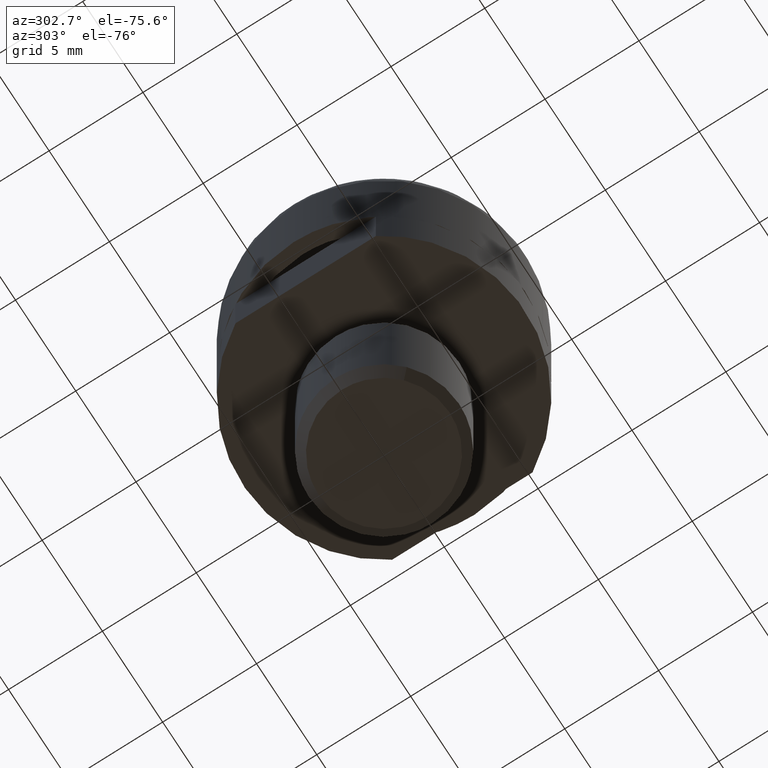
[diagram: clean part render]
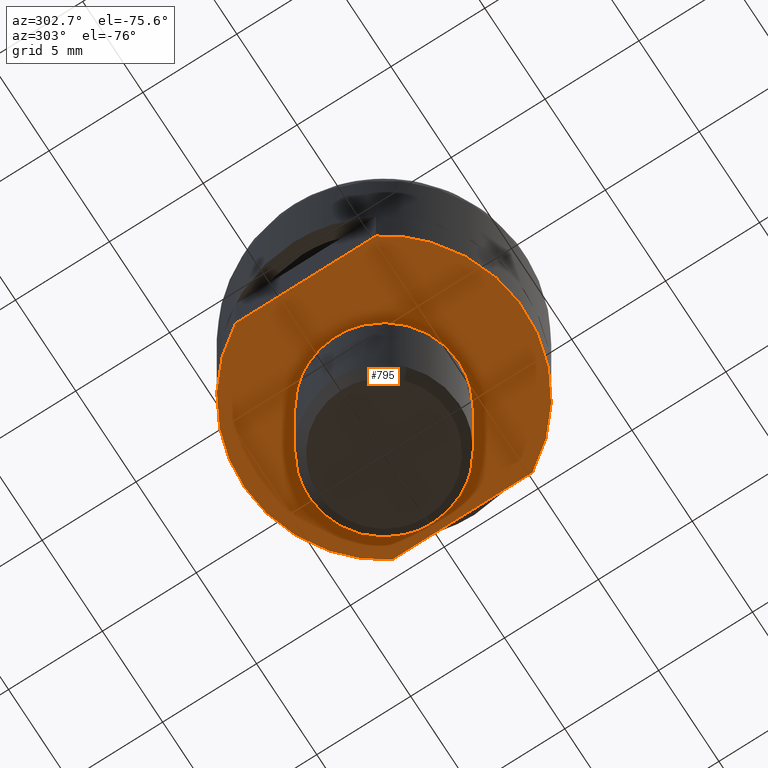
[diagram: same view with one face highlighted and labeled with its STEP entity id]
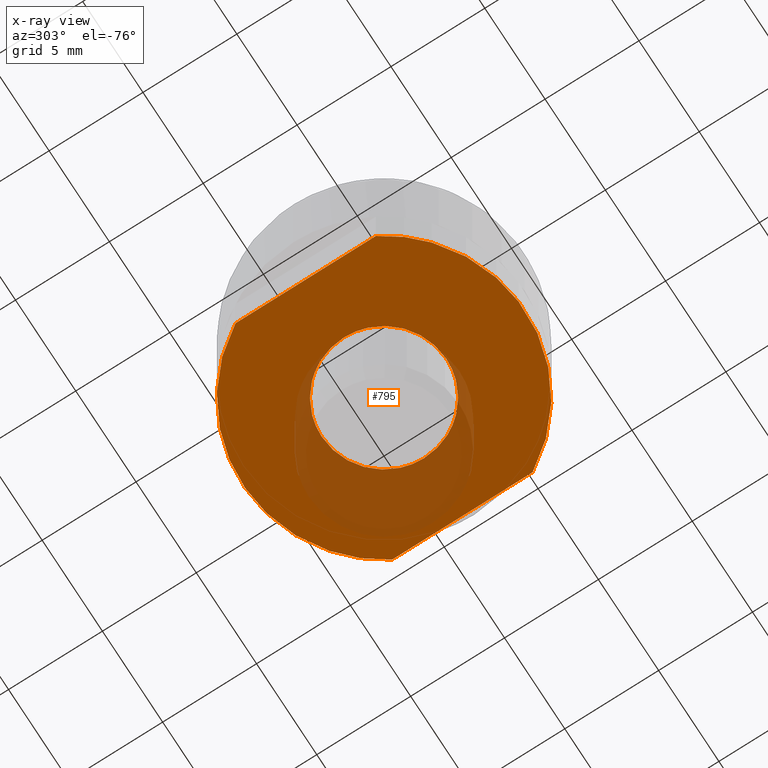
[diagram: x-ray of the same camera — body ghosted, the highlighted face saturated]
A machine part, auxiliary view. The second image highlights one B-rep face of the part: STEP entity #795.
The next image is the same camera in x-ray: the body ghosted, the highlighted face saturated — about 22% of this face is hidden behind the body in this view.
In plain terms, the highlighted face is a freeform B-spline surface patch.
Its self-contained STEP definition (entity closure, byte-faithful):
#527=CARTESIAN_POINT('',(2.410781652535512,-2.287746386526897,-3.500000000000000));
#528=VERTEX_POINT('',#527);
#534=CARTESIAN_POINT('',(-0.000000328260274,-3.323500000001139,-3.500000000000000));
#535=VERTEX_POINT('',#534);
#536=CARTESIAN_POINT('',(2.410781652535512,-2.287746386526897,-3.500000000000000));
#537=CARTESIAN_POINT('',(2.246415627530849,-2.461011319120368,-3.499999999999998));
#538=CARTESIAN_POINT('',(1.912417877375178,-2.744415553552723,-3.500000000000008));
#539=CARTESIAN_POINT('',(1.357663713891210,-3.052719840585294,-3.499999999999995));
#540=CARTESIAN_POINT('',(0.730484763812574,-3.267334959280996,-3.499999999999997));
#541=CARTESIAN_POINT('',(0.266924573784726,-3.323565410489630,-3.499999999999993));
#542=CARTESIAN_POINT('',(-0.000000328260274,-3.323500000001139,-3.500000000000000));
#543=B_SPLINE_CURVE_WITH_KNOTS('',3,(#536,#537,#538,#539,#540,#541,#542),.UNSPECIFIED.,.F.,.U.,(4,1,1,1,4),(1.677700E-009,0.716469834580310,1.306503960859597,1.896537728817779,2.697298174242583),.UNSPECIFIED.);
#544=EDGE_CURVE('',#528,#535,#543,.T.);
#546=CARTESIAN_POINT('',(-3.323500000001155,0.0,-3.500000000000000));
#547=VERTEX_POINT('',#546);
#548=CARTESIAN_POINT('',(-0.000000328260274,-3.323500000001139,-3.500000000000000));
#549=CARTESIAN_POINT('',(-0.190330848609856,-3.323516934000768,-3.499999999999997));
#550=CARTESIAN_POINT('',(-0.530204525874173,-3.294221232029030,-3.500000000000008));
#551=CARTESIAN_POINT('',(-0.993529292359728,-3.181178842911355,-3.499999999999998));
#552=CARTESIAN_POINT('',(-1.438318445045920,-3.009610356781183,-3.500000000000002));
#553=CARTESIAN_POINT('',(-1.925117815432612,-2.733880303475241,-3.499999999999998));
#554=CARTESIAN_POINT('',(-2.351717751205775,-2.370423904952076,-3.500000000000012));
#555=CARTESIAN_POINT('',(-2.676162114961191,-1.984780954404404,-3.500000000000000));
#556=CARTESIAN_POINT('',(-2.936153982647909,-1.585187658666918,-3.499999999999993));
#557=CARTESIAN_POINT('',(-3.149307889037604,-1.112187135223885,-3.500000000000012));
#558=CARTESIAN_POINT('',(-3.291882526376739,-0.557394207874439,-3.499999999999981));
#559=CARTESIAN_POINT('',(-3.323513402424241,-0.190330987830235,-3.500000000000016));
#560=CARTESIAN_POINT('',(-3.323500000001155,0.0,-3.500000000000000));
#561=B_SPLINE_CURVE_WITH_KNOTS('',3,(#548,#549,#550,#551,#552,#553,#554,#555,#556,#557,#558,#559,#560),.UNSPECIFIED.,.F.,.U.,(4,1,1,1,1,1,1,1,1,1,4),(3.646628E-009,0.570992803484433,1.019642930845790,1.427501903994826,1.998505969783211,2.691857747504676,3.099710116488103,3.507569146364670,4.119360705071269,4.649580012415152,5.220574163773217),.UNSPECIFIED.);
#562=EDGE_CURVE('',#535,#547,#561,.T.);
#564=CARTESIAN_POINT('',(-2.410781652535520,2.287746386526904,-3.500000000000000));
#565=VERTEX_POINT('',#564);
#566=CARTESIAN_POINT('',(-3.323500000001155,0.0,-3.500000000000000));
#567=CARTESIAN_POINT('',(-3.323531101357428,0.223415662813405,-3.500000000000002));
#568=CARTESIAN_POINT('',(-3.282259337752514,0.630805859153988,-3.500000000000007));
#569=CARTESIAN_POINT('',(-3.108187224226588,1.225667800957424,-3.499999999999995));
#570=CARTESIAN_POINT('',(-2.831250849922852,1.780894690954809,-3.499999999999996));
#571=CARTESIAN_POINT('',(-2.564594292396629,2.125707636469051,-3.499999999999989));
#572=CARTESIAN_POINT('',(-2.410781652535520,2.287746386526904,-3.500000000000000));
#573=B_SPLINE_CURVE_WITH_KNOTS('',3,(#566,#567,#568,#569,#570,#571,#572),.UNSPECIFIED.,.F.,.U.,(4,1,1,1,4),(2.959068E-009,0.670245403561424,1.222213379520995,1.853031146980156,2.523276547581471),.UNSPECIFIED.);
#574=EDGE_CURVE('',#547,#565,#573,.T.);
#608=CARTESIAN_POINT('',(0.000000328260231,3.323500000001139,-3.500000000000000));
#609=VERTEX_POINT('',#608);
#610=CARTESIAN_POINT('',(-2.410781652535520,2.287746386526904,-3.500000000000000));
#611=CARTESIAN_POINT('',(-2.265743022978396,2.440616289581794,-3.500000000000000));
#612=CARTESIAN_POINT('',(-1.935816372724498,2.727898544356820,-3.500000000000006));
#613=CARTESIAN_POINT('',(-1.408866547215875,3.029561624934778,-3.499999999999993));
#614=CARTESIAN_POINT('',(-0.758559530430641,3.261339048357221,-3.500000000000006));
#615=CARTESIAN_POINT('',(-0.295028048679430,3.323597074085012,-3.500000000000000));
#616=CARTESIAN_POINT('',(0.000000328260231,3.323500000001139,-3.500000000000000));
#617=B_SPLINE_CURVE_WITH_KNOTS('',3,(#610,#611,#612,#613,#614,#615,#616),.UNSPECIFIED.,.F.,.U.,(4,1,1,1,4),(1.677508E-009,0.632179255057022,1.306503960859534,1.812247081131641,2.697298174242545),.UNSPECIFIED.);
#618=EDGE_CURVE('',#565,#609,#617,.T.);
#620=CARTESIAN_POINT('',(3.323500000001155,0.0,-3.500000000000000));
#621=VERTEX_POINT('',#620);
#622=CARTESIAN_POINT('',(0.000000328260231,3.323500000001139,-3.500000000000000));
#623=CARTESIAN_POINT('',(0.217523880588000,3.323531093996358,-3.500000000000014));
#624=CARTESIAN_POINT('',(0.557388581758197,3.290003201002441,-3.499999999999985));
#625=CARTESIAN_POINT('',(1.098074981885646,3.151048501386223,-3.500000000000012));
#626=CARTESIAN_POINT('',(1.637995995096274,2.919650195150680,-3.499999999999992));
#627=CARTESIAN_POINT('',(2.141225082282621,2.565210327253279,-3.500000000000001));
#628=CARTESIAN_POINT('',(2.552968179966214,2.148343639205586,-3.500000000000013));
#629=CARTESIAN_POINT('',(2.824747600907005,1.772344366743801,-3.499999999999995));
#630=CARTESIAN_POINT('',(3.065847691840570,1.314539353179935,-3.500000000000011));
#631=CARTESIAN_POINT('',(3.264772541552865,0.747708636549294,-3.499999999999968));
#632=CARTESIAN_POINT('',(3.323568824364878,0.271906282116536,-3.500000000000040));
#633=CARTESIAN_POINT('',(3.323500000001155,0.0,-3.500000000000000));
#634=B_SPLINE_CURVE_WITH_KNOTS('',3,(#622,#623,#624,#625,#626,#627,#628,#629,#630,#631,#632,#633),.UNSPECIFIED.,.F.,.U.,(4,1,1,1,1,1,1,1,1,4),(3.647078E-009,0.652565620889481,1.019642930846127,1.672219006978722,2.406359549496662,2.854998462666676,3.425996730499464,3.793072872185920,4.404864516723691,5.220574163773241),.UNSPECIFIED.);
#635=EDGE_CURVE('',#609,#621,#634,.T.);
#637=CARTESIAN_POINT('',(3.323500000001155,0.0,-3.500000000000000));
#638=CARTESIAN_POINT('',(3.323547653672411,-0.249702458215003,-3.499999999999998));
#639=CARTESIAN_POINT('',(3.271412820843233,-0.709648184992942,-3.500000000000003));
#640=CARTESIAN_POINT('',(3.084373940135841,-1.273492025046416,-3.499999999999996));
#641=CARTESIAN_POINT('',(2.813679509339027,-1.800467284709844,-3.500000000000009));
#642=CARTESIAN_POINT('',(2.582706516952638,-2.106655845293478,-3.500000000000000));
#643=CARTESIAN_POINT('',(2.410781652535512,-2.287746386526897,-3.500000000000000));
#644=B_SPLINE_CURVE_WITH_KNOTS('',3,(#637,#638,#639,#640,#641,#642,#643),.UNSPECIFIED.,.F.,.U.,(4,1,1,1,4),(2.958826E-009,0.749098426697798,1.379913853350701,1.774178123845089,2.523276547581471),.UNSPECIFIED.);
#645=EDGE_CURVE('',#621,#528,#644,.T.);
#720=CARTESIAN_POINT('',(-7.149349974803478,-8.249238511785865,-3.500000000000000));
#721=CARTESIAN_POINT('',(7.149350323490650,-8.249238511785865,-3.500000000000000));
#722=CARTESIAN_POINT('',(-7.149349974803478,8.249248704180120,-3.500000000000000));
#723=CARTESIAN_POINT('',(7.149350323490650,8.249248704180120,-3.500000000000000));
#724=B_SPLINE_SURFACE_WITH_KNOTS('',1,1,((#720,#722),(#721,#723)),.UNSPECIFIED.,.F.,.F.,.U.,(2,2),(2,2),(0.0,14.298700298294129),(0.0,16.498487215965991),.UNSPECIFIED.);
#725=CARTESIAN_POINT('',(6.500000000000000,-3.741657386773955,-3.499999999999950));
#726=VERTEX_POINT('',#725);
#727=CARTESIAN_POINT('',(6.500000000000000,3.741657386773960,-3.499999999999950));
#728=VERTEX_POINT('',#727);
#729=CARTESIAN_POINT('',(6.500000000000000,-3.741657386773955,-3.499999999999950));
#730=CARTESIAN_POINT('',(6.500000000000000,3.741657386773960,-3.499999999999950));
#731=QUASI_UNIFORM_CURVE('',1,(#729,#730),.UNSPECIFIED.,.F.,.U.);
#732=EDGE_CURVE('',#726,#728,#731,.T.);
#733=ORIENTED_EDGE('',*,*,#732,.F.);
#734=CARTESIAN_POINT('',(-6.500000000000000,-3.741657386773940,-3.499999999999950));
#735=VERTEX_POINT('',#734);
#736=CARTESIAN_POINT('',(6.500000000000000,-3.741657386773955,-3.499999999999950));
#737=CARTESIAN_POINT('',(6.244659799017190,-4.185397161223928,-3.499999999999943));
#738=CARTESIAN_POINT('',(5.775006151903496,-4.836515957625982,-3.499999999999971));
#739=CARTESIAN_POINT('',(4.949068458117769,-5.664048955108207,-3.499999999999910));
#740=CARTESIAN_POINT('',(4.200162008089989,-6.239660201904073,-3.500000000000056));
#741=CARTESIAN_POINT('',(3.418834100623152,-6.691413349918008,-3.499999999999806));
#742=CARTESIAN_POINT('',(2.669243529958468,-7.024142409064701,-3.500000000000072));
#743=CARTESIAN_POINT('',(1.946775809411628,-7.256579189370314,-3.499999999999933));
#744=CARTESIAN_POINT('',(1.164692433124087,-7.422351029810555,-3.499999999999887));
#745=CARTESIAN_POINT('',(0.226493938656663,-7.522670980262048,-3.499999999999925));
#746=CARTESIAN_POINT('',(-0.821039527601134,-7.484042493918802,-3.500000000000060));
#747=CARTESIAN_POINT('',(-1.889465951007453,-7.280307145280417,-3.499999999999756));
#748=CARTESIAN_POINT('',(-2.863661308409059,-6.958064501928606,-3.500000000000155));
#749=CARTESIAN_POINT('',(-3.839461705480349,-6.476182043572970,-3.499999999999756));
#750=CARTESIAN_POINT('',(-4.832620183842115,-5.781707412883106,-3.500000000000068));
#751=CARTESIAN_POINT('',(-5.755163751278060,-4.872374776702712,-3.499999999999900));
#752=CARTESIAN_POINT('',(-6.275279356571367,-4.132130245586970,-3.499999999999937));
#753=CARTESIAN_POINT('',(-6.500000000000000,-3.741657386773940,-3.499999999999950));
#754=B_SPLINE_CURVE_WITH_KNOTS('',3,(#736,#737,#738,#739,#740,#741,#742,#743,#744,#745,#746,#747,#748,#749,#750,#751,#752,#753),.UNSPECIFIED.,.F.,.U.,(4,1,1,1,1,1,1,1,1,1,1,1,1,1,1,4),(6.116156E-009,1.535860694090927,2.395943893194650,3.501773201224173,4.361860603407497,5.099079826156066,5.959165333454930,6.634943631466134,7.495030990068290,8.785152341906883,9.768097971682774,10.751059429353541,11.856884940769080,13.024148331290450,14.375709826809050,15.727266542327779),.UNSPECIFIED.);
#755=EDGE_CURVE('',#726,#735,#754,.T.);
#756=ORIENTED_EDGE('',*,*,#755,.T.);
#757=CARTESIAN_POINT('',(-6.500000000000000,3.741657386773945,-3.499999999999950));
#758=VERTEX_POINT('',#757);
#759=CARTESIAN_POINT('',(-6.500000000000000,3.741657386773945,-3.499999999999950));
#760=CARTESIAN_POINT('',(-6.500000000000000,-3.741657386773940,-3.499999999999950));
#761=QUASI_UNIFORM_CURVE('',1,(#759,#760),.UNSPECIFIED.,.F.,.U.);
#762=EDGE_CURVE('',#758,#735,#761,.T.);
#763=ORIENTED_EDGE('',*,*,#762,.F.);
#764=CARTESIAN_POINT('',(-6.500000000000000,3.741657386773945,-3.499999999999950));
#765=CARTESIAN_POINT('',(-6.224235039555047,4.220895824910869,-3.499999999999957));
#766=CARTESIAN_POINT('',(-5.651348156723611,5.001617898358892,-3.499999999999925));
#767=CARTESIAN_POINT('',(-4.760531161454642,5.823839796016742,-3.499999999999986));
#768=CARTESIAN_POINT('',(-4.023336363580437,6.343822400104379,-3.499999999999891));
#769=CARTESIAN_POINT('',(-3.238699169436151,6.789005822579193,-3.500000000000092));
#770=CARTESIAN_POINT('',(-2.229430971100028,7.198001631582306,-3.499999999999760));
#771=CARTESIAN_POINT('',(-1.165624910353982,7.432582512152226,-3.500000000000071));
#772=CARTESIAN_POINT('',(-0.021308744725032,7.526550326561916,-3.499999999999860));
#773=CARTESIAN_POINT('',(1.025725001468258,7.462145869800784,-3.499999999999960));
#774=CARTESIAN_POINT('',(2.046856797501979,7.232503694985994,-3.499999999999960));
#775=CARTESIAN_POINT('',(2.859870718837093,6.948709080006261,-3.499999999999948));
#776=CARTESIAN_POINT('',(3.657003134900085,6.571180060850554,-3.499999999999950));
#777=CARTESIAN_POINT('',(4.435061924816876,6.073238959666403,-3.499999999999941));
#778=CARTESIAN_POINT('',(5.237700838526783,5.402328060347696,-3.500000000000012));
#779=CARTESIAN_POINT('',(5.926836296672887,4.640408745489081,-3.499999999999778));
#780=CARTESIAN_POINT('',(6.336547038474402,4.025622134209427,-3.500000000000180));
#781=CARTESIAN_POINT('',(6.500000000000000,3.741657386773960,-3.499999999999950));
#782=B_SPLINE_CURVE_WITH_KNOTS('',3,(#764,#765,#766,#767,#768,#769,#770,#771,#772,#773,#774,#775,#776,#777,#778,#779,#780,#781),.UNSPECIFIED.,.F.,.U.,(4,1,1,1,1,1,1,1,1,1,1,1,1,1,1,4),(6.115723E-009,1.658732826058888,2.887424461768577,3.624642545928241,4.361860603407859,5.590559164388301,6.880684249032591,7.617899152158165,9.030887753234239,10.013837600598450,10.751059429353701,11.611145456101861,12.655538595508821,13.515624348462760,14.744319942805131,15.727266542327779),.UNSPECIFIED.);
#783=EDGE_CURVE('',#758,#728,#782,.T.);
#784=ORIENTED_EDGE('',*,*,#783,.T.);
#785=EDGE_LOOP('',(#733,#756,#763,#784));
#786=FACE_OUTER_BOUND('',#785,.T.);
#787=ORIENTED_EDGE('',*,*,#562,.F.);
#788=ORIENTED_EDGE('',*,*,#544,.F.);
#789=ORIENTED_EDGE('',*,*,#645,.F.);
#790=ORIENTED_EDGE('',*,*,#635,.F.);
#791=ORIENTED_EDGE('',*,*,#618,.F.);
#792=ORIENTED_EDGE('',*,*,#574,.F.);
#793=EDGE_LOOP('',(#787,#788,#789,#790,#791,#792));
#794=FACE_BOUND('',#793,.T.);
#795=ADVANCED_FACE('',(#786,#794),#724,.F.);